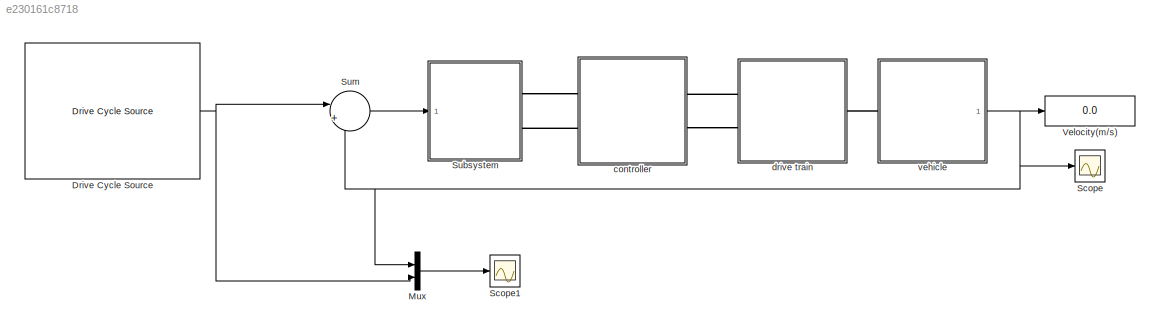
MODEL slx_e230161c8718
KIND model
CONFIG AbsTol = auto
CONFIG EnableMultiTasking = off
CONFIG FixedStep = auto
CONFIG MaxStep = 1e-1
CONFIG MinStep = auto
CONFIG RelTol = 1e-3
CONFIG SampleTimeConstraint = Unconstrained
CONFIG SolverName = VariableStepAuto
CONFIG StartTime = 0
CONFIG StopTime = 2474
BLOCK [Reference] Drive Cycle Source  REF=autolibshared/Drive Cycle Source
  AttributesFormatString = %<cycleVar> (%<tfinal>)
  Ports = [0, 1]
  SourceBlock = autolibshared/Drive Cycle Source
  SourceProductBaseCode = PW,DR,MT,UV,VE
  SourceType = Drive Cycle Source
BLOCK [Mux] Mux
  DisplayOption = bar
  Inputs = 2
  Ports = [2, 1]
BLOCK [Scope] Scope
  Floating = off
  NumInputPorts = 1
  Ports = [1]
  ScopeSpecificationString = Simulink.scopes.TimeScopeBlockCfg('CurrentConfiguration', extmgr.ConfigurationSet(extmgr.Configuration('Core','General UI',true),extmgr.Configuration('Core','Source UI',true),extmgr.Configuration('Sources','WiredSimulink',true,'DataLoggingVariableName','ScopeData2'),extmgr.Configuration('Visuals','Time Domain',true,'SerializedDisplays',{struct('MinYLimReal','-3.08474','MaxYLimReal','27.7627','YLab...<+1466ch>
BLOCK [Scope] Scope1
  Floating = off
  NumInputPorts = 1
  Ports = [1]
  ScopeSpecificationString = Simulink.scopes.TimeScopeBlockCfg('CurrentConfiguration', extmgr.ConfigurationSet(extmgr.Configuration('Core','General UI',true),extmgr.Configuration('Core','Source UI',true),extmgr.Configuration('Sources','WiredSimulink',true,'DataLoggingVariableName','ScopeData3'),extmgr.Configuration('Visuals','Time Domain',true,'SerializedDisplays',{struct('MinYLimReal','-3.1684','MaxYLimReal','28.51556','YLab...<+1459ch>
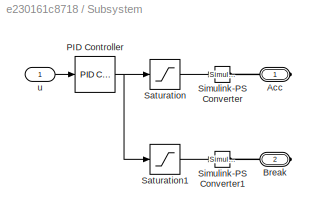
BLOCK [SubSystem] Subsystem
  Ports = [1, 0, 0, 0, 0, 0, 2]
  RequestExecContextInheritance = off
BLOCK [PMIOPort] Subsystem/Acc
  Side = Right
BLOCK [PMIOPort] Subsystem/Break
  Port = 2
  Side = Right
BLOCK [Reference] Subsystem/PID Controller  REF=pid_lib/PID Controller
  Ports = [1, 1]
  SourceBlock = pid_lib/PID Controller
  SourceProductBaseCode = SL
  SourceType = PID 1dof
BLOCK [Saturate] Subsystem/Saturation
  UpperLimit = +inf
BLOCK [Saturate] Subsystem/Saturation1
  LowerLimit = -inf
  UpperLimit = 0
BLOCK [Reference] Subsystem/Simulink-PS Converter  REF=nesl_utility/Simulink-PS
Converter
  Ports = [1, 0, 0, 0, 0, 0, 1]
  SourceBlock = nesl_utility/Simulink-PS\nConverter
  SourceProductBaseCode = PW,SS
  SourceType = Simulink-PS\nConverter
BLOCK [Reference] Subsystem/Simulink-PS Converter1  REF=nesl_utility/Simulink-PS
Converter
  Ports = [1, 0, 0, 0, 0, 0, 1]
  SourceBlock = nesl_utility/Simulink-PS\nConverter
  SourceProductBaseCode = PW,SS
  SourceType = Simulink-PS\nConverter
BLOCK [Inport] Subsystem/u
BLOCK [Sum] Sum
  Inputs = |+-
  Ports = [2, 1]
BLOCK [Display] Velocity(m//s)
  Decimation = 1
  Ports = [1]
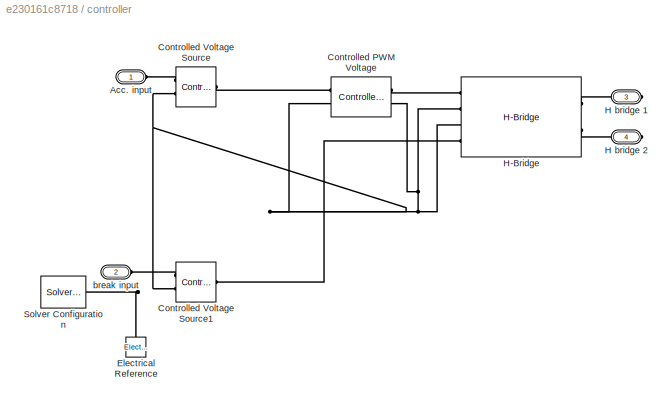
BLOCK [SubSystem] controller
  Ports = [0, 0, 0, 0, 0, 2, 2]
  RequestExecContextInheritance = off
BLOCK [PMIOPort] controller/Acc. input
  Side = Left
BLOCK [Reference] controller/Controlled PWM Voltage  REF=ee_lib/Integrated Circuits/Controlled PWM
Voltage
  Ports = [0, 0, 0, 0, 0, 2, 2]
  SourceBlock = ee_lib/Integrated Circuits/Controlled PWM\nVoltage
  SourceProductBaseCode = PS
  SourceType = Controlled PWM\nVoltage
BLOCK [Reference] controller/Controlled Voltage Source  REF=fl_lib/Electrical/Electrical Sources/Controlled Voltage
Source
  Ports = [0, 0, 0, 0, 0, 1, 2]
  SourceBlock = fl_lib/Electrical/Electrical Sources/Controlled Voltage\nSource
  SourceProductBaseCode = SS
  SourceType = Controlled Voltage\nSource
BLOCK [Reference] controller/Controlled Voltage Source1  REF=fl_lib/Electrical/Electrical Sources/Controlled Voltage
Source
  Ports = [0, 0, 0, 0, 0, 1, 2]
  SourceBlock = fl_lib/Electrical/Electrical Sources/Controlled Voltage\nSource
  SourceProductBaseCode = SS
  SourceType = Controlled Voltage\nSource
BLOCK [Reference] controller/Electrical Reference  REF=fl_lib/Electrical/Electrical Elements/Electrical Reference
  NameLocation = right
  Ports = [0, 0, 0, 0, 0, 1]
  SourceBlock = fl_lib/Electrical/Electrical Elements/Electrical Reference
  SourceProductBaseCode = SS
  SourceType = Electrical Reference
BLOCK [PMIOPort] controller/H bridge 1
  Port = 3
  Side = Right
BLOCK [PMIOPort] controller/H bridge 2
  Port = 4
  Side = Right
BLOCK [Reference] controller/H-Bridge  REF=ee_lib/Semiconductors &
Converters/Converters/H-Bridge
  Ports = [0, 0, 0, 0, 0, 4, 2]
  SourceBlock = ee_lib/Semiconductors &\nConverters/Converters/H-Bridge
  SourceProductBaseCode = PS
  SourceType = H-Bridge
BLOCK [Reference] controller/Solver Configuration  REF=nesl_utility/Solver
Configuration
  Ports = [0, 0, 0, 0, 0, 0, 1]
  SourceBlock = nesl_utility/Solver\nConfiguration
  SourceProductBaseCode = PW,SS
  SourceType = Solver\nConfiguration
BLOCK [PMIOPort] controller/break input
  Port = 2
  Side = Left
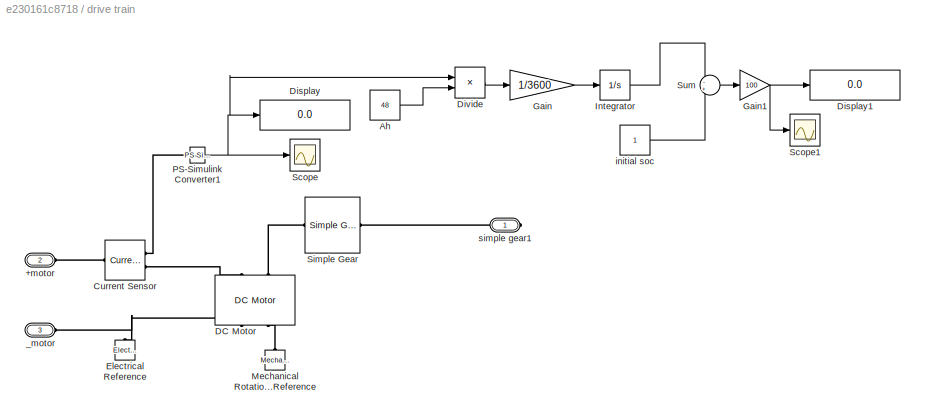
BLOCK [SubSystem] drive train
  Ports = [0, 0, 0, 0, 0, 2, 1]
  RequestExecContextInheritance = off
BLOCK [PMIOPort] drive train/+motor
  Port = 2
  Side = Left
BLOCK [Constant] drive train/Ah
  Value = 48
BLOCK [Reference] drive train/Current Sensor  REF=fl_lib/Electrical/Electrical Sensors/Current Sensor
  Ports = [0, 0, 0, 0, 0, 1, 2]
  SourceBlock = fl_lib/Electrical/Electrical Sensors/Current Sensor
  SourceProductBaseCode = SS
  SourceType = Current Sensor
BLOCK [Reference] drive train/DC Motor  REF=ee_lib/Electromechanical/Brushed Motors/DC Motor
  NameLocation = right
  Ports = [0, 0, 0, 0, 0, 2, 2]
  SourceBlock = ee_lib/Electromechanical/Brushed Motors/DC Motor
  SourceProductBaseCode = PS
  SourceType = DC Motor
BLOCK [Display] drive train/Display
  Decimation = 1
  Ports = [1]
BLOCK [Display] drive train/Display1
  Decimation = 1
  Ports = [1]
BLOCK [Product] drive train/Divide
  Inputs = */
  Ports = [2, 1]
BLOCK [Reference] drive train/Electrical Reference  REF=fl_lib/Electrical/Electrical Elements/Electrical Reference
  NameLocation = right
  Ports = [0, 0, 0, 0, 0, 1]
  SourceBlock = fl_lib/Electrical/Electrical Elements/Electrical Reference
  SourceProductBaseCode = SS
  SourceType = Electrical Reference
BLOCK [Gain] drive train/Gain
  Gain = 1/3600
BLOCK [Gain] drive train/Gain1
  Gain = 100
BLOCK [Integrator] drive train/Integrator
  Ports = [1, 1]
BLOCK [Reference] drive train/Mechanical Rotational Reference  REF=fl_lib/Mechanical/Rotational Elements/Mechanical
Rotational Reference
  NameLocation = right
  Ports = [0, 0, 0, 0, 0, 1]
  SourceBlock = fl_lib/Mechanical/Rotational Elements/Mechanical\nRotational Reference
  SourceProductBaseCode = SS
  SourceType = Mechanical\nRotational Reference
BLOCK [Reference] drive train/PS-Simulink Converter1  REF=nesl_utility/PS-Simulink
Converter
  Ports = [0, 1, 0, 0, 0, 1]
  SourceBlock = nesl_utility/PS-Simulink\nConverter
  SourceProductBaseCode = PW,SS
  SourceType = PS-Simulink\nConverter
BLOCK [Scope] drive train/Scope
  Floating = off
  NumInputPorts = 1
  Ports = [1]
  ScopeSpecificationString = Simulink.scopes.TimeScopeBlockCfg('CurrentConfiguration', extmgr.ConfigurationSet(extmgr.Configuration('Core','General UI',true),extmgr.Configuration('Core','Source UI',true),extmgr.Configuration('Sources','WiredSimulink',true),extmgr.Configuration('Visuals','Time Domain',true),extmgr.Configuration('Tools','Plot Navigation',true),extmgr.Configuration('Tools','Measurements',true)),'Version','2021a'...<+1ch>
BLOCK [Scope] drive train/Scope1
  Floating = off
  NumInputPorts = 1
  Ports = [1]
  ScopeSpecificationString = Simulink.scopes.TimeScopeBlockCfg('CurrentConfiguration', extmgr.ConfigurationSet(extmgr.Configuration('Core','General UI',true),extmgr.Configuration('Core','Source UI',true),extmgr.Configuration('Sources','WiredSimulink',true,'DataLoggingVariableName','ScopeData1'),extmgr.Configuration('Visuals','Time Domain',true),extmgr.Configuration('Tools','Plot Navigation',true),extmgr.Configuration('Tools',...<+40ch>
BLOCK [Reference] drive train/Simple Gear  REF=sdl_lib/Gears/Simple Gear
  Ports = [0, 0, 0, 0, 0, 1, 1]
  SourceBlock = sdl_lib/Gears/Simple Gear
  SourceProductBaseCode = LD
  SourceType = Simple Gear
BLOCK [Sum] drive train/Sum
  Inputs = -+
  Ports = [2, 1]
BLOCK [PMIOPort] drive train/_motor
  Port = 3
  Side = Left
BLOCK [Constant] drive train/initial soc
BLOCK [PMIOPort] drive train/simple gear1
  Side = Right
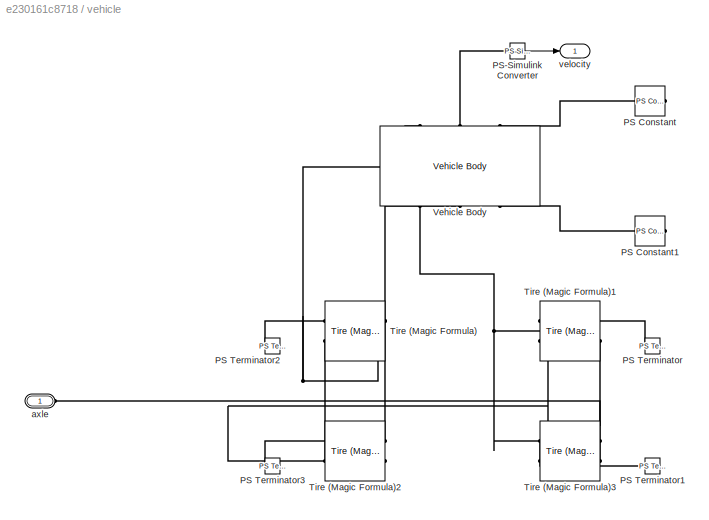
BLOCK [SubSystem] vehicle
  Ports = [0, 1, 0, 0, 0, 1]
  RequestExecContextInheritance = off
BLOCK [Reference] vehicle/PS Constant  REF=fl_lib/Physical Signals/Sources/PS Constant
  NameLocation = top
  Ports = [0, 0, 0, 0, 0, 0, 1]
  SourceBlock = fl_lib/Physical Signals/Sources/PS Constant
  SourceProductBaseCode = SS
  SourceType = PS Constant
BLOCK [Reference] vehicle/PS Constant1  REF=fl_lib/Physical Signals/Sources/PS Constant
  NameLocation = top
  Ports = [0, 0, 0, 0, 0, 0, 1]
  SourceBlock = fl_lib/Physical Signals/Sources/PS Constant
  SourceProductBaseCode = SS
  SourceType = PS Constant
BLOCK [Reference] vehicle/PS Terminator  REF=fl_lib/Physical Signals/Sinks/PS Terminator
  Ports = [0, 0, 0, 0, 0, 1]
  SourceBlock = fl_lib/Physical Signals/Sinks/PS Terminator
  SourceProductBaseCode = SS
  SourceType = PS Terminator
BLOCK [Reference] vehicle/PS Terminator1  REF=fl_lib/Physical Signals/Sinks/PS Terminator
  Ports = [0, 0, 0, 0, 0, 1]
  SourceBlock = fl_lib/Physical Signals/Sinks/PS Terminator
  SourceProductBaseCode = SS
  SourceType = PS Terminator
BLOCK [Reference] vehicle/PS Terminator2  REF=fl_lib/Physical Signals/Sinks/PS Terminator
  NameLocation = top
  Ports = [0, 0, 0, 0, 0, 1]
  SourceBlock = fl_lib/Physical Signals/Sinks/PS Terminator
  SourceProductBaseCode = SS
  SourceType = PS Terminator
BLOCK [Reference] vehicle/PS Terminator3  REF=fl_lib/Physical Signals/Sinks/PS Terminator
  NameLocation = top
  Ports = [0, 0, 0, 0, 0, 1]
  SourceBlock = fl_lib/Physical Signals/Sinks/PS Terminator
  SourceProductBaseCode = SS
  SourceType = PS Terminator
BLOCK [Reference] vehicle/PS-Simulink Converter  REF=nesl_utility/PS-Simulink
Converter
  Ports = [0, 1, 0, 0, 0, 1]
  SourceBlock = nesl_utility/PS-Simulink\nConverter
  SourceProductBaseCode = PW,SS
  SourceType = PS-Simulink\nConverter
BLOCK [Reference] vehicle/Tire (Magic Formula)  REF=sdl_lib/Tires & Vehicles/Tire (Magic Formula)
  NameLocation = top
  Ports = [0, 0, 0, 0, 0, 2, 2]
  SourceBlock = sdl_lib/Tires & Vehicles/Tire (Magic Formula)
  SourceProductBaseCode = LD
  SourceType = Tire (Magic Formula)
BLOCK [Reference] vehicle/Tire (Magic Formula)1  REF=sdl_lib/Tires & Vehicles/Tire (Magic Formula)
  NameLocation = top
  Ports = [0, 0, 0, 0, 0, 2, 2]
  SourceBlock = sdl_lib/Tires & Vehicles/Tire (Magic Formula)
  SourceProductBaseCode = LD
  SourceType = Tire (Magic Formula)
BLOCK [Reference] vehicle/Tire (Magic Formula)2  REF=sdl_lib/Tires & Vehicles/Tire (Magic Formula)
  NameLocation = top
  Ports = [0, 0, 0, 0, 0, 2, 2]
  SourceBlock = sdl_lib/Tires & Vehicles/Tire (Magic Formula)
  SourceProductBaseCode = LD
  SourceType = Tire (Magic Formula)
BLOCK [Reference] vehicle/Tire (Magic Formula)3  REF=sdl_lib/Tires & Vehicles/Tire (Magic Formula)
  NameLocation = top
  Ports = [0, 0, 0, 0, 0, 2, 2]
  SourceBlock = sdl_lib/Tires & Vehicles/Tire (Magic Formula)
  SourceProductBaseCode = LD
  SourceType = Tire (Magic Formula)
BLOCK [Reference] vehicle/Vehicle Body  REF=sdl_lib/Tires & Vehicles/Vehicle Body
  NameLocation = right
  Ports = [0, 0, 0, 0, 0, 3, 3]
  SourceBlock = sdl_lib/Tires & Vehicles/Vehicle Body
  SourceProductBaseCode = LD
  SourceType = Vehicle Body
BLOCK [PMIOPort] vehicle/axle
  Side = Left
BLOCK [Outport] vehicle/velocity
NET Drive Cycle Source:1 -> Mux:2, Sum:1
LINE Mux:1 -> Scope1:1
NET Subsystem/PID Controller:1 -> Subsystem/Saturation1:1, Subsystem/Saturation:1
LINE Subsystem/Saturation1:1 -> Subsystem/Simulink-PS Converter1:1
LINE Subsystem/Saturation:1 -> Subsystem/Simulink-PS Converter:1
LINE Subsystem/u:1 -> Subsystem/PID Controller:1
LINE Sum:1 -> Subsystem:1
LINE drive train/Ah:1 -> drive train/Divide:2
LINE drive train/Divide:1 -> drive train/Gain:1
NET drive train/Gain1:1 -> drive train/Display1:1, drive train/Scope1:1
LINE drive train/Gain:1 -> drive train/Integrator:1
LINE drive train/Integrator:1 -> drive train/Sum:1
NET drive train/PS-Simulink Converter1:1 -> drive train/Display:1, drive train/Divide:1, drive train/Scope:1
LINE drive train/Sum:1 -> drive train/Gain1:1
LINE drive train/initial soc:1 -> drive train/Sum:2
LINE vehicle/PS-Simulink Converter:1 -> vehicle/velocity:1
NET vehicle:1 -> Mux:1, Scope:1, Sum:2, Velocity(m//s):1
PLINE Subsystem/Acc:RConn1 -- Subsystem/Simulink-PS Converter:RConn1
PLINE Subsystem/Break:RConn1 -- Subsystem/Simulink-PS Converter1:RConn1
PLINE Subsystem:RConn1 -- controller:LConn1
PLINE Subsystem:RConn2 -- controller:LConn2
PLINE controller/Acc. input:RConn1 -- controller/Controlled Voltage Source:RConn1
PLINE controller/Controlled PWM Voltage:LConn1 -- controller/Controlled Voltage Source:LConn1
PNET net1: controller/Controlled PWM Voltage:LConn2 -- controller/Controlled PWM Voltage:RConn2 -- controller/Controlled Voltage Source1:RConn2 -- controller/Controlled Voltage Source:RConn2 -- controller/Electrical Reference:LConn1 -- controller/H-Bridge:LConn2 -- controller/H-Bridge:LConn3 -- controller/Solver Configuration:RConn1
PLINE controller/Controlled PWM Voltage:RConn1 -- controller/H-Bridge:LConn1
PLINE controller/Controlled Voltage Source1:LConn1 -- controller/H-Bridge:LConn4
PLINE controller/Controlled Voltage Source1:RConn1 -- controller/break input:RConn1
PLINE controller/H bridge 1:RConn1 -- controller/H-Bridge:RConn1
PLINE controller/H bridge 2:RConn1 -- controller/H-Bridge:RConn2
PLINE controller:RConn1 -- drive train:LConn1
PLINE controller:RConn2 -- drive train:LConn2
PLINE drive train/+motor:RConn1 -- drive train/Current Sensor:LConn1
PLINE drive train/Current Sensor:RConn1 -- drive train/PS-Simulink Converter1:LConn1
PLINE drive train/Current Sensor:RConn2 -- drive train/DC Motor:LConn1
PLINE drive train/DC Motor:LConn2 -- drive train/Simple Gear:LConn1
PNET net2: drive train/DC Motor:RConn1 -- drive train/Electrical Reference:LConn1 -- drive train/_motor:RConn1
PLINE drive train/DC Motor:RConn2 -- drive train/Mechanical Rotational Reference:LConn1
PLINE drive train/Simple Gear:RConn1 -- drive train/simple gear1:RConn1
PLINE drive train:RConn1 -- vehicle:LConn1
PLINE vehicle/PS Constant1:RConn1 -- vehicle/Vehicle Body:RConn3
PLINE vehicle/PS Constant:RConn1 -- vehicle/Vehicle Body:LConn3
PLINE vehicle/PS Terminator1:LConn1 -- vehicle/Tire (Magic Formula)3:RConn1
PLINE vehicle/PS Terminator2:LConn1 -- vehicle/Tire (Magic Formula):RConn1
PLINE vehicle/PS Terminator3:LConn1 -- vehicle/Tire (Magic Formula)2:RConn1
PLINE vehicle/PS Terminator:LConn1 -- vehicle/Tire (Magic Formula)1:RConn1
PLINE vehicle/PS-Simulink Converter:LConn1 -- vehicle/Vehicle Body:LConn2
PNET net3: vehicle/Tire (Magic Formula)1:LConn1 -- vehicle/Tire (Magic Formula)3:LConn1 -- vehicle/Vehicle Body:RConn1
PNET net4: vehicle/Tire (Magic Formula)1:LConn2 -- vehicle/Tire (Magic Formula)3:LConn2 -- vehicle/axle:RConn1
PNET net5: vehicle/Tire (Magic Formula)1:RConn2 -- vehicle/Tire (Magic Formula)2:RConn2 -- vehicle/Tire (Magic Formula)3:RConn2 -- vehicle/Tire (Magic Formula):RConn2 -- vehicle/Vehicle Body:LConn1
PNET net6: vehicle/Tire (Magic Formula)2:LConn1 -- vehicle/Tire (Magic Formula):LConn1 -- vehicle/Vehicle Body:RConn2
PLINE vehicle/Tire (Magic Formula)2:LConn2 -- vehicle/Tire (Magic Formula):LConn2
note: NET lines group one-source signal fan-out (src -> all destinations, sorted); 1:1 wires keep LINE; PNET lines group multi-terminal physical nets as a canonical sorted terminal list (undirected conserving connections); 2-terminal nets keep the pairwise PLINE form
